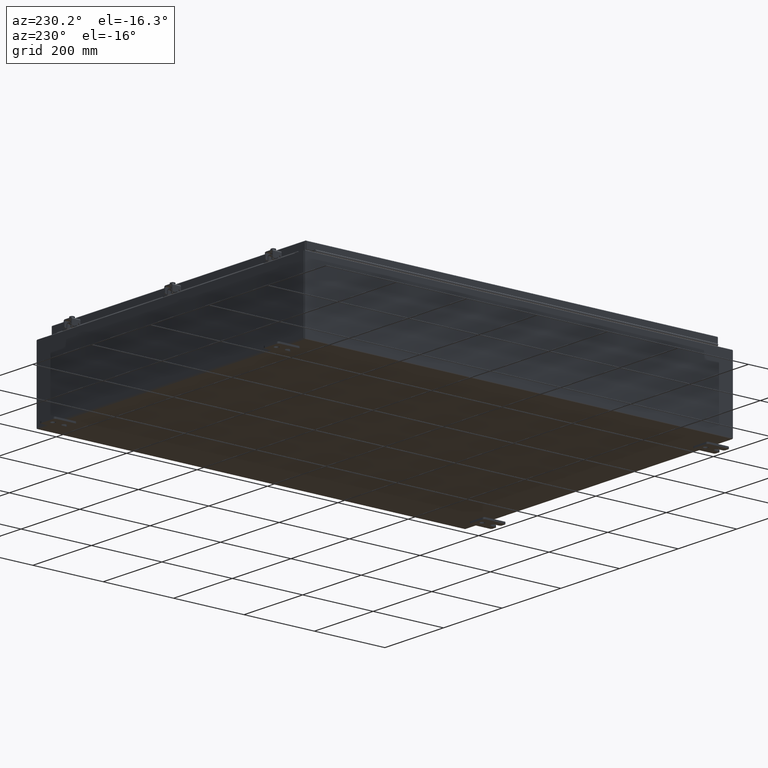
[diagram: clean part render]
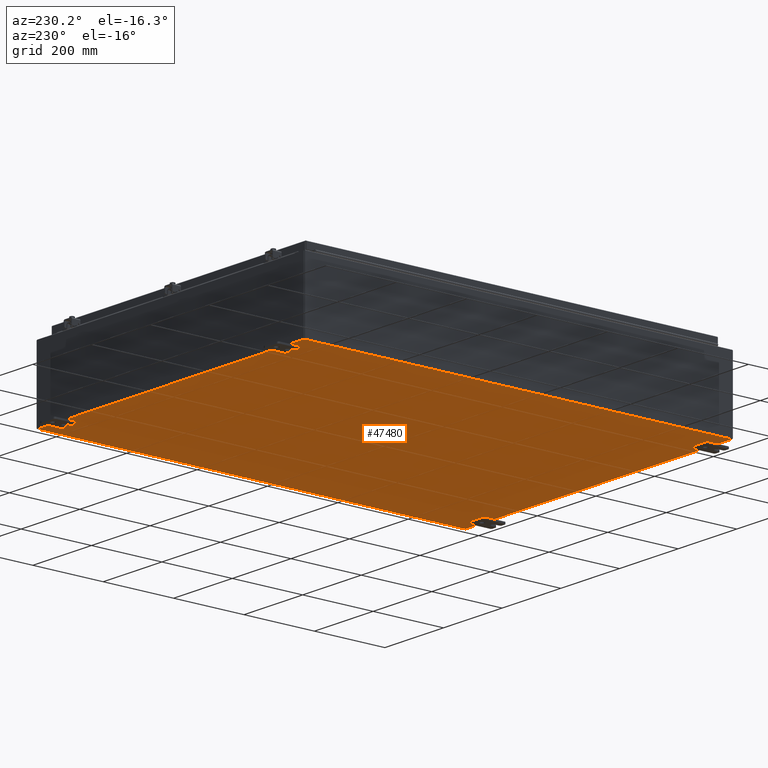
[diagram: same view with one face highlighted and labeled with its STEP entity id]
A machine part, auxiliary view. The second image highlights one B-rep face of the part: STEP entity #47480.
In plain terms, the highlighted planar face has unit normal (0, 0, -1).
Its self-contained STEP definition (entity closure, byte-faithful):
#2647 = EDGE_CURVE ( 'NONE', #6443, #30947, #21353, .T. ) ;
#3680 = CARTESIAN_POINT ( 'NONE',  ( -18.00000000000000400, 23.92530000000000000, -0.07470000000000000300 ) ) ;
#3694 = LINE ( 'NONE', #32717, #49460 ) ;
#6443 = VERTEX_POINT ( 'NONE', #39860 ) ;
#8973 = VERTEX_POINT ( 'NONE', #38957 ) ;
#11234 = DIRECTION ( 'NONE',  ( -0.0000000000000000000, 1.000000000000000000, -0.0000000000000000000 ) ) ;
#12820 = DIRECTION ( 'NONE',  ( 1.000000000000000000, 1.214154663850783700E-016, 0.0000000000000000000 ) ) ;
#16556 = CARTESIAN_POINT ( 'NONE',  ( -17.91230000000000500, 23.92529999999998900, -0.07470000000000000300 ) ) ;
#17078 = DIRECTION ( 'NONE',  ( -1.000000000000000000, 0.0000000000000000000, -0.0000000000000000000 ) ) ;
#21353 = LINE ( 'NONE', #45548, #54622 ) ;
#21566 = CARTESIAN_POINT ( 'NONE',  ( -18.00000000000000400, -23.92530000000000400, -0.07470000000000000300 ) ) ;
#21985 = VECTOR ( 'NONE', #25333, 39.37007874015748100 ) ;
#23360 = LINE ( 'NONE', #3680, #21985 ) ;
#24546 = EDGE_CURVE ( 'NONE', #8973, #42123, #3694, .T. ) ;
#25333 = DIRECTION ( 'NONE',  ( -1.000000000000000000, -0.0000000000000000000, -0.0000000000000000000 ) ) ;
#25350 = EDGE_CURVE ( 'NONE', #8973, #30947, #30015, .T. ) ;
#26479 = ORIENTED_EDGE ( 'NONE', *, *, #2647, .T. ) ;
#29962 = PLANE ( 'NONE',  #33824 ) ;
#30015 = LINE ( 'NONE', #21566, #42806 ) ;
#30716 = EDGE_CURVE ( 'NONE', #6443, #42123, #23360, .T. ) ;
#30947 = VERTEX_POINT ( 'NONE', #35664 ) ;
#32717 = CARTESIAN_POINT ( 'NONE',  ( -17.91230000000000500, -23.92529999999998900, -0.07469999999999994700 ) ) ;
#32771 = ORIENTED_EDGE ( 'NONE', *, *, #25350, .F. ) ;
#33824 = AXIS2_PLACEMENT_3D ( 'NONE', #46987, #42923, #17078 ) ;
#35664 = CARTESIAN_POINT ( 'NONE',  ( 17.91229999999999500, -23.92530000000000000, -0.07470000000000000300 ) ) ;
#37582 = ORIENTED_EDGE ( 'NONE', *, *, #30716, .F. ) ;
#38957 = CARTESIAN_POINT ( 'NONE',  ( -17.91230000000000500, -23.92529999999998600, -0.07469999999999994700 ) ) ;
#39860 = CARTESIAN_POINT ( 'NONE',  ( 17.91229999999999500, 23.92529999999998600, -0.07469999999999688000 ) ) ;
#40955 = ORIENTED_EDGE ( 'NONE', *, *, #24546, .T. ) ;
#42123 = VERTEX_POINT ( 'NONE', #16556 ) ;
#42806 = VECTOR ( 'NONE', #12820, 39.37007874015748100 ) ;
#42923 = DIRECTION ( 'NONE',  ( 0.0000000000000000000, 0.0000000000000000000, -1.000000000000000000 ) ) ;
#45548 = CARTESIAN_POINT ( 'NONE',  ( 17.91229999999999500, 23.92529999999998900, -0.07469999999999688000 ) ) ;
#46987 = CARTESIAN_POINT ( 'NONE',  ( 0.0000000000000000000, 0.0000000000000000000, -0.07470000000000000300 ) ) ;
#47480 = ADVANCED_FACE ( 'NONE', ( #49627 ), #29962, .T. ) ;
#49460 = VECTOR ( 'NONE', #11234, 39.37007874015748100 ) ;
#49627 = FACE_OUTER_BOUND ( 'NONE', #51093, .T. ) ;
#50626 = DIRECTION ( 'NONE',  ( -0.0000000000000000000, -1.000000000000000000, -8.208677865577646300E-017 ) ) ;
#51093 = EDGE_LOOP ( 'NONE', ( #32771, #40955, #37582, #26479 ) ) ;
#54622 = VECTOR ( 'NONE', #50626, 39.37007874015748100 ) ;